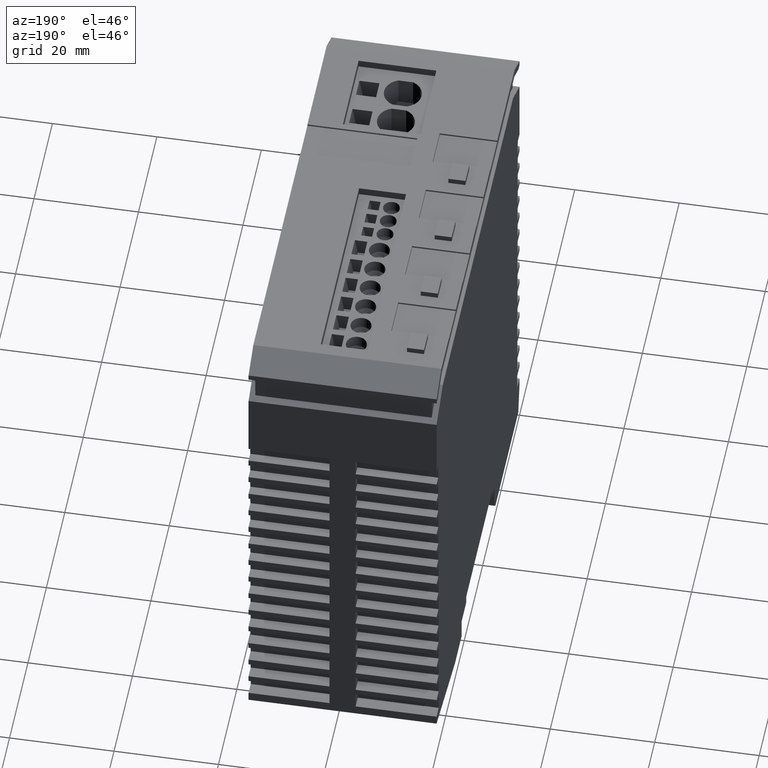
[diagram: clean part render]
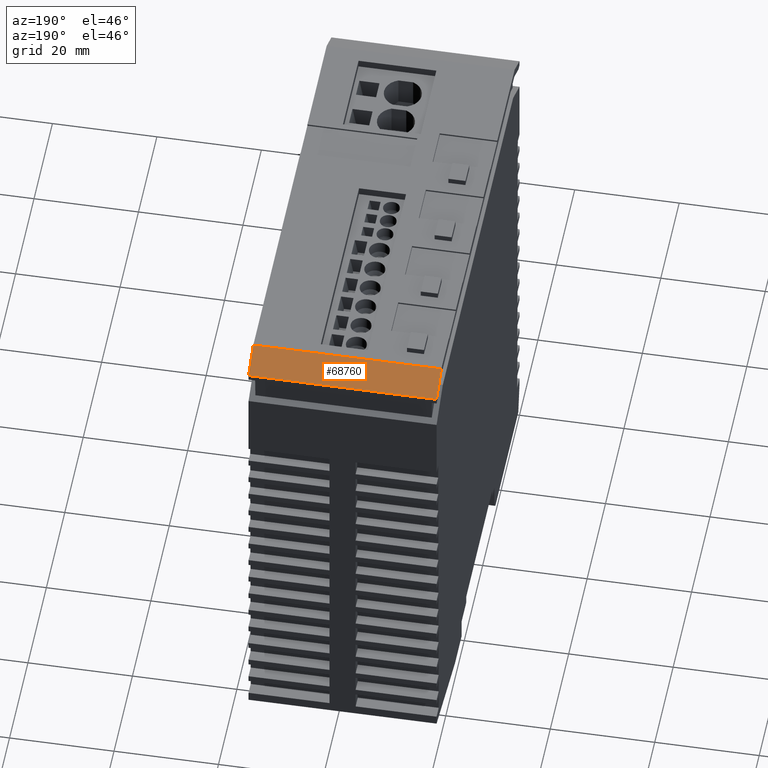
[diagram: same view with one face highlighted and labeled with its STEP entity id]
A machine part, auxiliary view. The second image highlights one B-rep face of the part: STEP entity #68760.
In plain terms, the highlighted planar face has unit normal (-0, 0.5, 0.866).
Its self-contained STEP definition (entity closure, byte-faithful):
#68210=CARTESIAN_POINT('',(80.0000003005958,69.6999999999998,
1.20020988548251));
#68220=VERTEX_POINT('',#68210);
#68250=CARTESIAN_POINT('',(80.0000002608691,69.6999999999998,
-34.7997901145175));
#68260=DIRECTION('',(1.10351751365283E-9,8.52434733488825E-24,1.));
#68270=VECTOR('',#68260,1.);
#68280=LINE('',#68250,#68270);
#68290=CARTESIAN_POINT('',(80.0000002608691,69.6999999999999,
-34.7997901145175));
#68300=VERTEX_POINT('',#68290);
#68310=EDGE_CURVE('',#68300,#68220,#68280,.T.);
#68460=CARTESIAN_POINT('',(75.8185183944741,62.4574609574311,
-35.2995806907523));
#68470=DIRECTION('',(-0.866025403784434,0.500000000000009,
9.55674200344379E-10));
#68480=DIRECTION('',(-0.500000000000009,-0.866025403784434,
5.51771220556096E-10));
#68490=AXIS2_PLACEMENT_3D('',#68460,#68470,#68480);
#68500=PLANE('',#68490);
#68510=CARTESIAN_POINT('',(54.0192379600094,24.6999996755416,
-34.7997900858471));
#68520=DIRECTION('',(-0.500000000000009,-0.866025403784434,
5.51761865630257E-10));
#68530=VECTOR('',#68520,1.);
#68540=LINE('',#68510,#68530);
#68550=CARTESIAN_POINT('',(77.0000005007023,64.5038479926965,
-34.7997901112069));
#68560=VERTEX_POINT('',#68550);
#68570=EDGE_CURVE('',#68300,#68560,#68540,.T.);
#68580=ORIENTED_EDGE('',*,*,#68570,.T.);
#68590=ORIENTED_EDGE('',*,*,#68310,.F.);
#68600=CARTESIAN_POINT('',(54.019237999736,24.6999996755416,
1.20020991415289));
#68610=DIRECTION('',(0.500000000000009,0.866025403784434,
-5.51761865630257E-10));
#68620=VECTOR('',#68610,1.);
#68630=LINE('',#68600,#68620);
#68640=CARTESIAN_POINT('',(77.0000005404291,64.5038479926969,
1.20020988879307));
#68650=VERTEX_POINT('',#68640);
#68660=EDGE_CURVE('',#68650,#68220,#68630,.T.);
#68670=ORIENTED_EDGE('',*,*,#68660,.T.);
#68680=CARTESIAN_POINT('',(77.0000005007023,64.5038479926965,
-34.7997901112069));
#68690=DIRECTION('',(-1.10352373176634E-9,-1.07700885332427E-14,-1.));
#68700=VECTOR('',#68690,1.);
#68710=LINE('',#68680,#68700);
#68720=EDGE_CURVE('',#68650,#68560,#68710,.T.);
#68730=ORIENTED_EDGE('',*,*,#68720,.F.);
#68740=EDGE_LOOP('',(#68730,#68670,#68590,#68580));
#68750=FACE_OUTER_BOUND('',#68740,.T.);
#68760=ADVANCED_FACE('',(#68750),#68500,.T.);